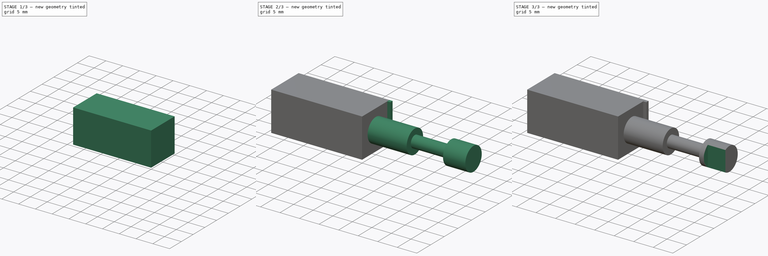
[diagram: build sequence overview — one tinted view per stage of 3, left to right]
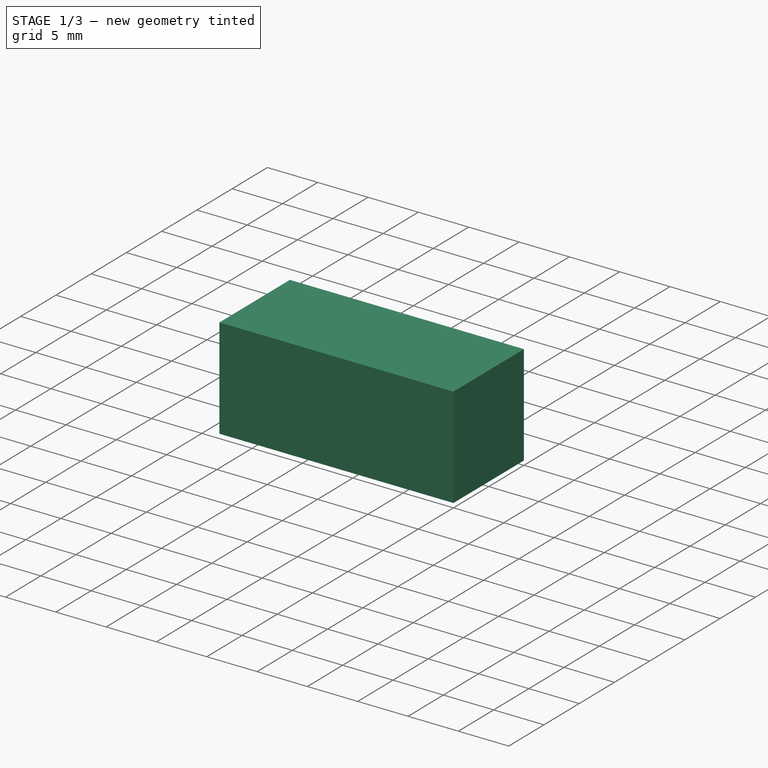
[diagram: stage 1 of 3 — iso view after this stage's code; geometry added in this stage tinted green]
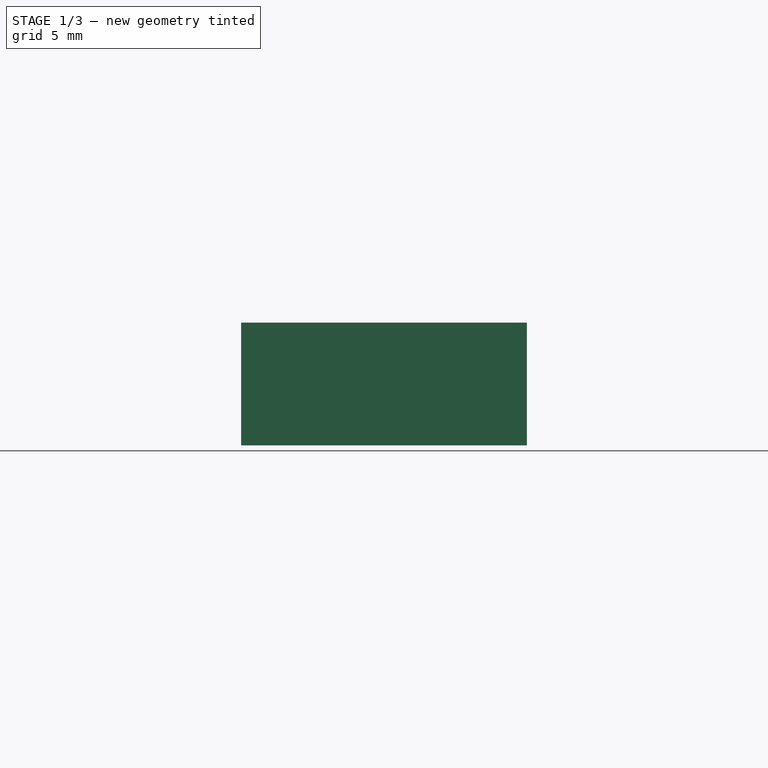
[diagram: stage 1 of 3 — front view after this stage's code; geometry added in this stage tinted green]
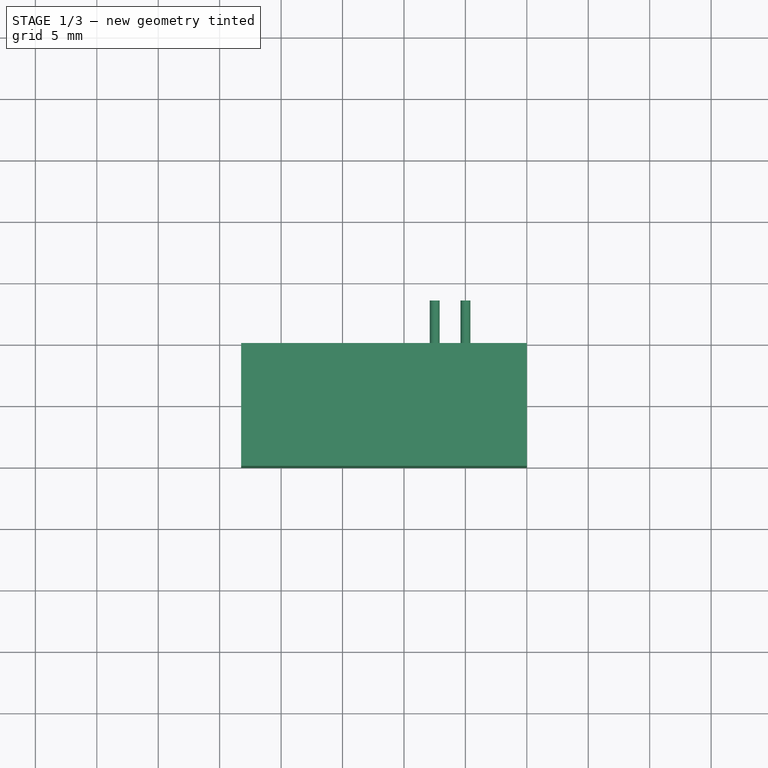
[diagram: stage 1 of 3 — top view after this stage's code; geometry added in this stage tinted green]
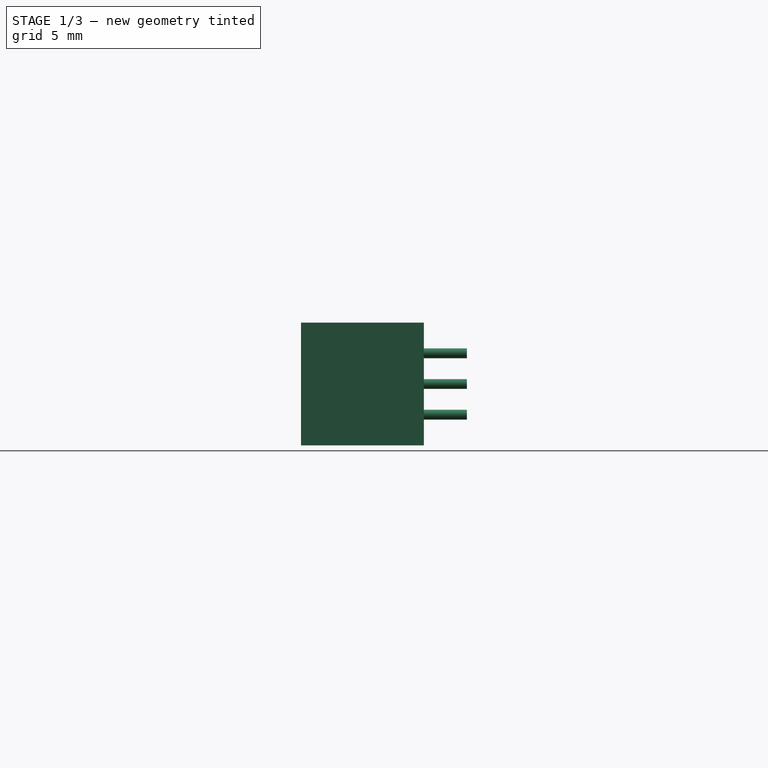
[diagram: stage 1 of 3 — right view after this stage's code; geometry added in this stage tinted green]
FCSTD DOCUMENT  (FreeCAD 0.15R4671 (Git))
Label: P09xP rotary potentiometer
License: CC-BY 3.0
LicenseURL: http://creativecommons.org/licenses/by/3.0/
objects: Sketcher::SketchObject×4, PartDesign::Pad×2, PartDesign::Revolution×1, PartDesign::Pocket×1, App::DocumentObjectGroup×1, Part::Box×1, Part::MultiFuse×1
note: 14 computed .brp shape members not serialized (recipe doc carries the construction recipe); baked Part::Feature solids carry a one-line shape summary decoded from their .brp

FEATURE [App::DocumentObjectGroup] Group  label="Push knob"
  Group = -> [Revolution]
FEATURE [Part::Box] Box
  Height = 10
  Length = 23.25
  Placement = pos=(-23.25,-5,-5) rot=(0,0,1;0rad)
  Width = 10
FEATURE [Sketcher::SketchObject] Sketch002
  ExternalGeometry = -> [Box]
  Placement = pos=(-23.25,5,-5) rot=(0,0.707107,0.707107;3.14159rad)
  Support = -> Box [Face4]
  sketch-geometry (14):
    g0: Circle CenterX=-18.25 CenterY=7.5 CenterZ=0 NormalX=0 NormalY=0 NormalZ=1 Radius=0.4
    g1: Circle CenterX=-18.25 CenterY=5 CenterZ=0 NormalX=0 NormalY=0 NormalZ=1 Radius=0.4
    g2: Circle CenterX=-18.25 CenterY=2.5 CenterZ=0 NormalX=0 NormalY=0 NormalZ=1 Radius=0.4
    g3: Circle CenterX=-15.75 CenterY=7.5 CenterZ=0 NormalX=0 NormalY=0 NormalZ=1 Radius=0.4
    g4: Circle CenterX=-15.75 CenterY=5 CenterZ=0 NormalX=0 NormalY=0 NormalZ=1 Radius=0.4
    g5: Circle CenterX=-15.75 CenterY=2.5 CenterZ=0 NormalX=0 NormalY=0 NormalZ=1 Radius=0.4
    g6: LineSegment [constr] StartX=-18.25 StartY=7.5 StartZ=0 EndX=-18.25 EndY=5 EndZ=0
    g7: LineSegment [constr] StartX=-18.25 StartY=5 StartZ=0 EndX=-18.25 EndY=2.5 EndZ=0
    g8: LineSegment [constr] StartX=-18.25 StartY=2.5 StartZ=0 EndX=-15.75 EndY=2.5 EndZ=0
    g9: LineSegment [constr] StartX=-18.25 StartY=7.5 StartZ=0 EndX=-15.75 EndY=7.5 EndZ=0
    g10: LineSegment [constr] StartX=-15.75 StartY=7.5 StartZ=0 EndX=-15.75 EndY=5 EndZ=0
    g11: LineSegment [constr] StartX=-15.75 StartY=5 StartZ=0 EndX=-15.75 EndY=2.5 EndZ=0
    g12: LineSegment [constr] StartX=-15.75 StartY=2.5 StartZ=0 EndX=-15.75 EndY=0 EndZ=0
    g13: LineSegment [constr] StartX=-15.75 StartY=7.5 StartZ=0 EndX=-15.75 EndY=10 EndZ=0
  constraints (37):
    c: DistanceX(g0,g3) = 2.5
    c: Coincident(g6,g0)
    c: Coincident(g7,g1)
    c: Vertical(g7)
    c: Vertical(g6)
    c: Coincident(g1,g6)
    c: Coincident(g2,g7)
    c: Coincident(g8,g2)
    c: Coincident(g8,g5)
    c: Horizontal(g8)
    c: Horizontal(g9)
    c: Coincident(g9,g10)
    c: Coincident(g9,g0)
    c: Coincident(g9,g3)
    c: Coincident(g10,g4)
    c: Vertical(g10)
    c: Coincident(g11,g4)
    c: Coincident(g11,g5)
    c: Vertical(g11)
    c: DistanceY(g0,g1) = -2.5
    c: Equal(g6,g10)
    c: Equal(g10,g11)
    c: Equal(g11,g7)
    c: Equal(g0,g3)
    c: Equal(g3,g4)
    c: Equal(g4,g1)
    c: Equal(g1,g2)
    c: Equal(g2,g5)
    c: Radius(g0) = 0.4
    c: DistanceX(g0,g-4) = -5
    c: Coincident(g12,g5)
    c: Vertical(g12)
    c: PointOnObject(g12,g-1)
    c: Coincident(g13,g3)
    c: PointOnObject(g13,g-4)
    c: Vertical(g13)
    c: Equal(g12,g13)
FEATURE [PartDesign::Pad] Pad
  Length = 3.5
  Length2 = 100
  Placement = pos=(-23.25,-5,-5) rot=(0,0,1;0rad)
  Sketch = -> Sketch002
  Type = 0
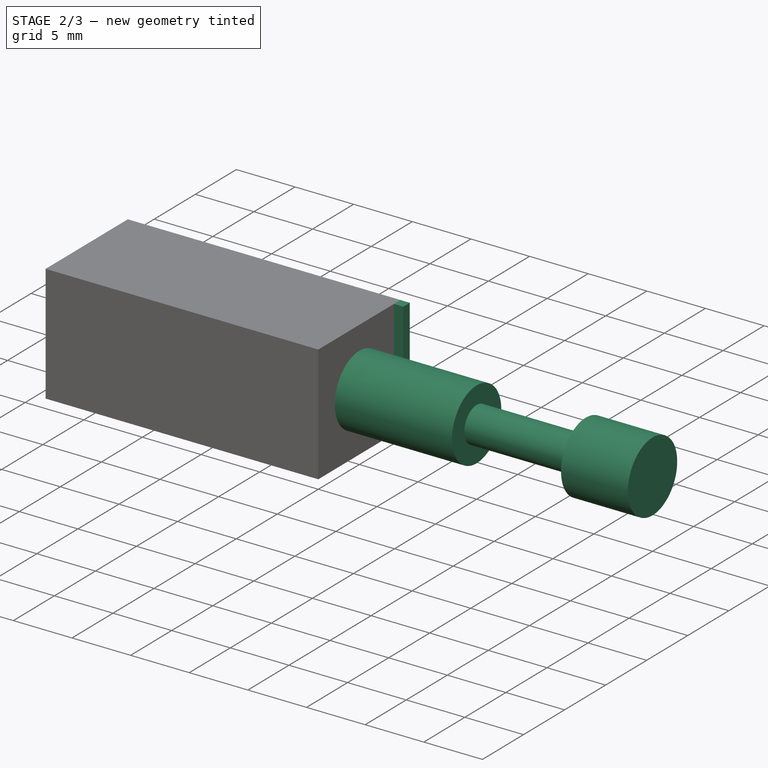
[diagram: stage 2 of 3 — iso view after this stage's code; geometry added in this stage tinted green]
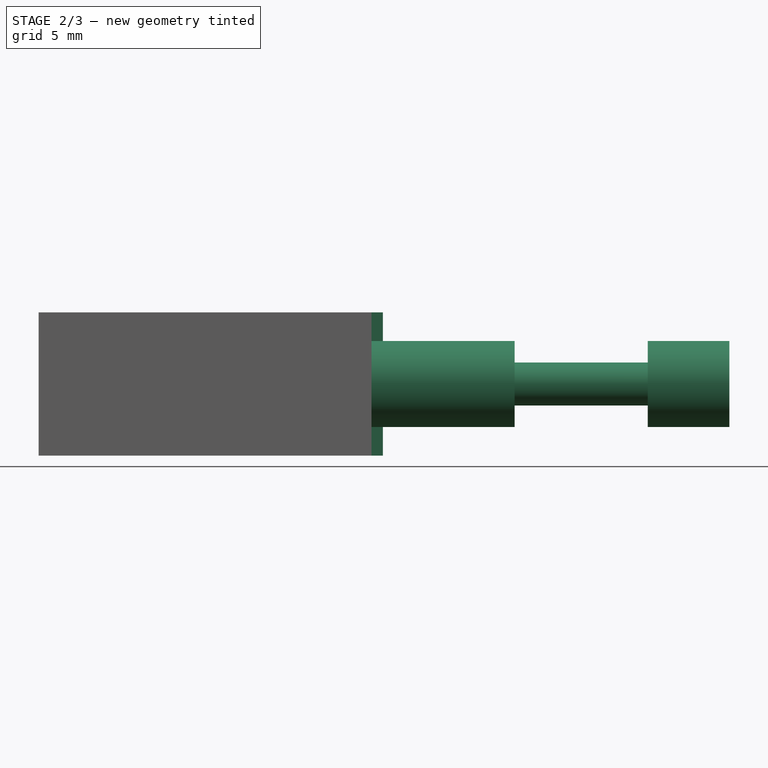
[diagram: stage 2 of 3 — front view after this stage's code; geometry added in this stage tinted green]
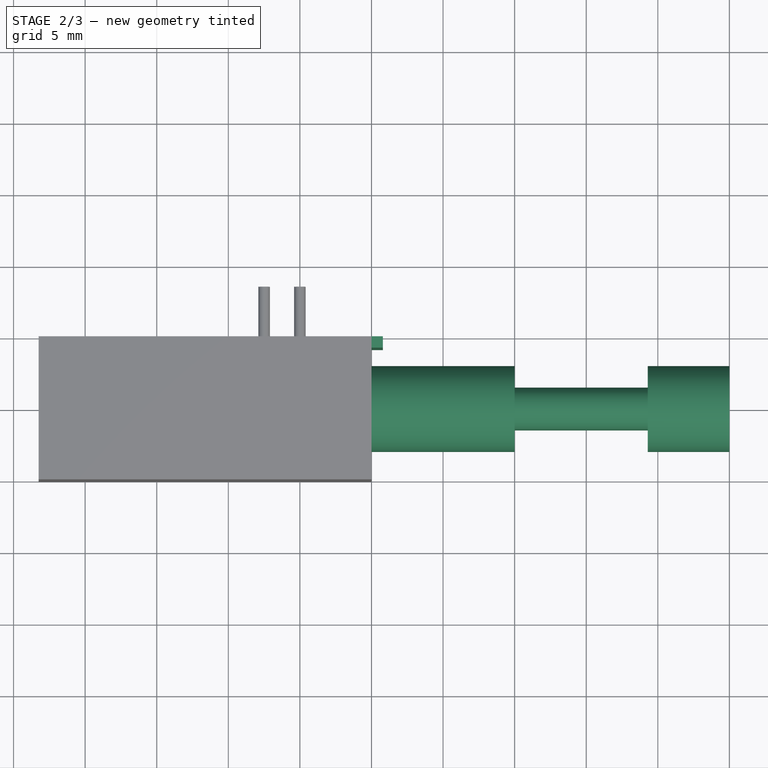
[diagram: stage 2 of 3 — top view after this stage's code; geometry added in this stage tinted green]
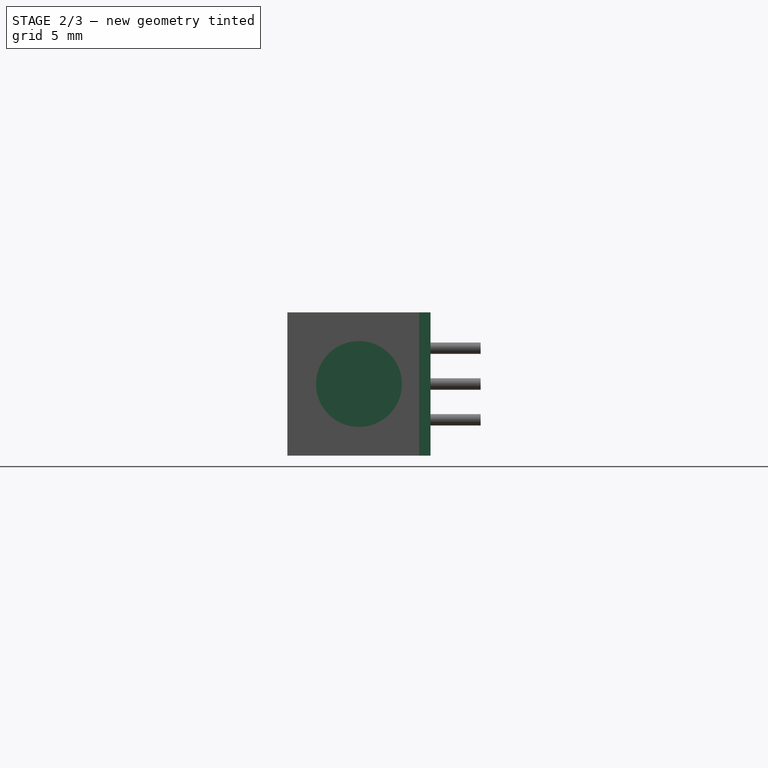
[diagram: stage 2 of 3 — right view after this stage's code; geometry added in this stage tinted green]
FEATURE [Sketcher::SketchObject] Sketch
  Placement = pos=(0,0,0) rot=(1,0,0;1.5708rad)
  sketch-geometry (8):
    g0: LineSegment StartX=10 StartY=3 StartZ=0 EndX=0 EndY=3 EndZ=0
    g1: LineSegment StartX=0 StartY=3 StartZ=0 EndX=0 EndY=0 EndZ=0
    g2: LineSegment StartX=25 StartY=0 StartZ=0 EndX=25 EndY=3 EndZ=0
    g3: LineSegment StartX=25 StartY=3 StartZ=0 EndX=19.3 EndY=3 EndZ=0
    g4: LineSegment StartX=10 StartY=3 StartZ=0 EndX=10 EndY=1.5 EndZ=0
    g5: LineSegment StartX=10 StartY=1.5 StartZ=0 EndX=19.3 EndY=1.5 EndZ=0
    g6: LineSegment StartX=19.3 StartY=1.5 StartZ=0 EndX=19.3 EndY=3 EndZ=0
    g7: LineSegment StartX=0 StartY=0 StartZ=0 EndX=25 EndY=0 EndZ=0
  constraints (23):
    c: Horizontal(g0)
    c: Coincident(g0,g1)
    c: Vertical(g1)
    c: Vertical(g2)
    c: Coincident(g2,g3)
    c: Horizontal(g3)
    c: Distance(g0,g0) = 10
    c: Distance(g2,g3) = 5.7
    c: DistanceY(g2,g2) = 3
    c: DistanceX(g1,g2) = 25
    c: Coincident(g0,g4)
    c: Coincident(g4,g5)
    c: Horizontal(g5)
    c: Coincident(g5,g6)
    c: Coincident(g6,g3)
    c: Vertical(g6)
    c: Coincident(g-1,g1)
    c: Vertical(g4)
    c: PointOnObject(g2,g-1)
    c: DistanceY(g5,g2) = -1.5
    c: Equal(g1,g2)
    c: Coincident(g7,g-1)
    c: Coincident(g7,g2)
FEATURE [PartDesign::Revolution] Revolution
  Angle = 360
  Axis = (1,0,0)
  Base = (0,0,0)
  Placement = pos=(0,0,0) rot=(1,0,0;1.5708rad)
  ReferenceAxis = -> Sketch [H_Axis]
  Sketch = -> Sketch
FEATURE [Sketcher::SketchObject] Sketch003
  ExternalGeometry = -> [Pad]
  Placement = pos=(0,-5,-5) rot=(0.57735,0.57735,0.57735;2.0944rad)
  Support = -> Pad [Face6]
  sketch-geometry (4):
    g0: LineSegment StartX=10 StartY=10 StartZ=0 EndX=9.2 EndY=10 EndZ=0
    g1: LineSegment StartX=9.2 StartY=10 StartZ=0 EndX=9.2 EndY=0 EndZ=0
    g2: LineSegment StartX=9.2 StartY=0 StartZ=0 EndX=10 EndY=0 EndZ=0
    g3: LineSegment StartX=10 StartY=0 StartZ=0 EndX=10 EndY=10 EndZ=0
  constraints (11):
    c: Coincident(g0,g1)
    c: Coincident(g1,g2)
    c: Coincident(g2,g3)
    c: Coincident(g3,g0)
    c: Horizontal(g0)
    c: Horizontal(g2)
    c: Vertical(g1)
    c: Vertical(g3)
    c: Coincident(g0,g-4)
    c: PointOnObject(g1,g-1)
    c: DistanceX(g0,g0) = 0.8
FEATURE [PartDesign::Pad] Pad001
  Length = 0.8
  Length2 = 100
  Placement = pos=(-23.25,-5,-5) rot=(0,0,1;0rad)
  Sketch = -> Sketch003
  Type = 0
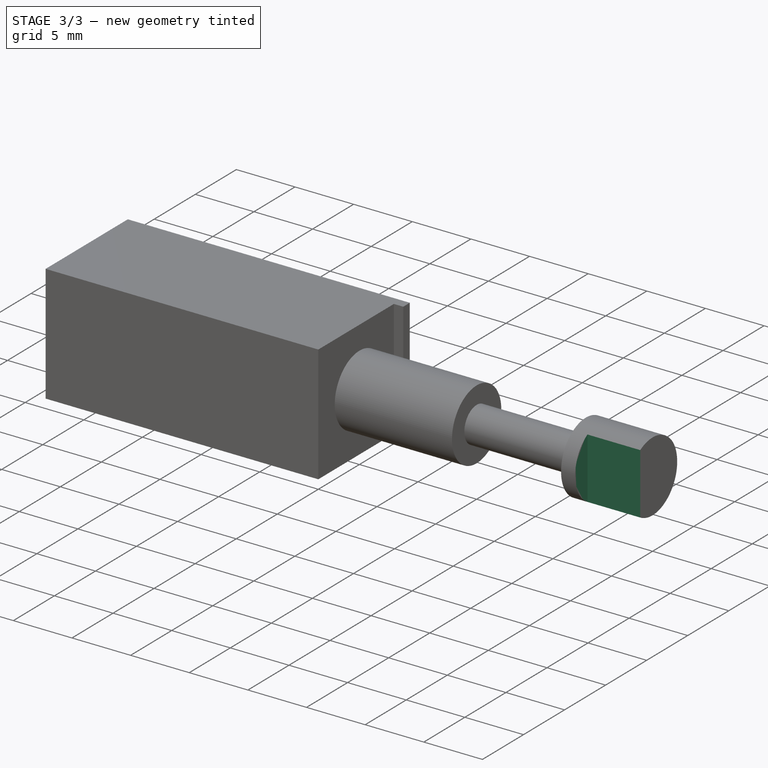
[diagram: stage 3 of 3 — iso view after this stage's code; geometry added in this stage tinted green]
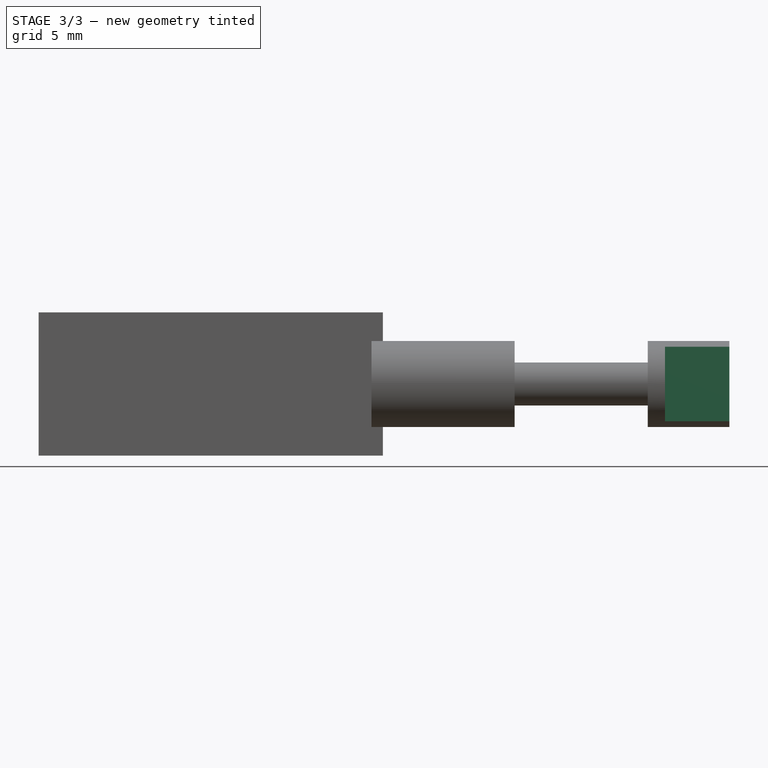
[diagram: stage 3 of 3 — front view after this stage's code; geometry added in this stage tinted green]
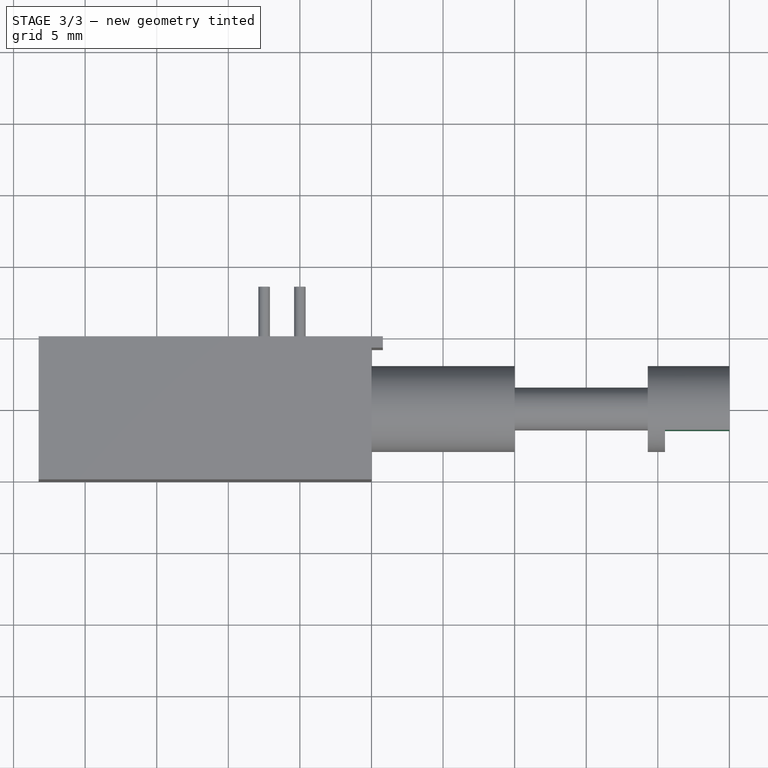
[diagram: stage 3 of 3 — top view after this stage's code; geometry added in this stage tinted green]
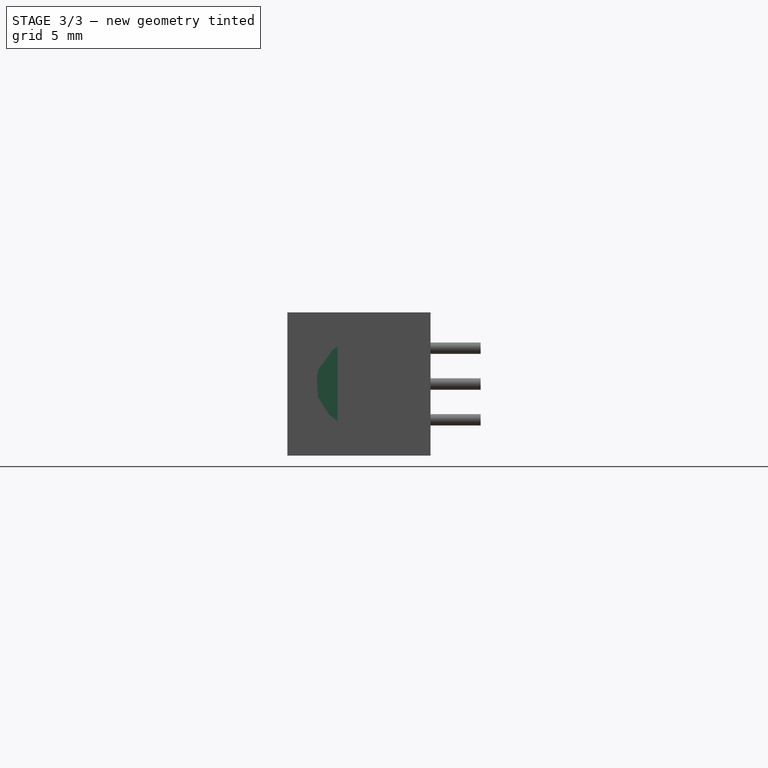
[diagram: stage 3 of 3 — right view after this stage's code; geometry added in this stage tinted green]
FEATURE [Sketcher::SketchObject] Sketch001
  Placement = pos=(25,0,0) rot=(0.707107,0,0.707107;3.14159rad)
  Support = -> Revolution [Face4]
  sketch-geometry (2):
    g0: ArcOfCircle CenterX=0 CenterY=1.49999 CenterZ=0 NormalX=0 NormalY=0 NormalZ=1 Radius=3 StartAngle=4.90282e-06 EndAngle=3.14159
    g1: LineSegment StartX=-3 StartY=1.5 StartZ=0 EndX=3 EndY=1.5 EndZ=0
  constraints (6):
    c: Radius(g0) = 3
    c: DistanceY(g-1,g0) = 1.5
    c: Coincident(g1,g0)
    c: Coincident(g1,g0)
    c: Symmetric(g0,g0,g-2)
    c: DistanceX(g-1,g0) = -3
FEATURE [PartDesign::Pocket] Pocket
  Length = 4.5
  Placement = pos=(0,0,0) rot=(1,0,0;1.5708rad)
  Sketch = -> Sketch001
  Type = 0
FEATURE [Part::MultiFuse] Fusion
  Shapes = -> [Pad001,Pocket]
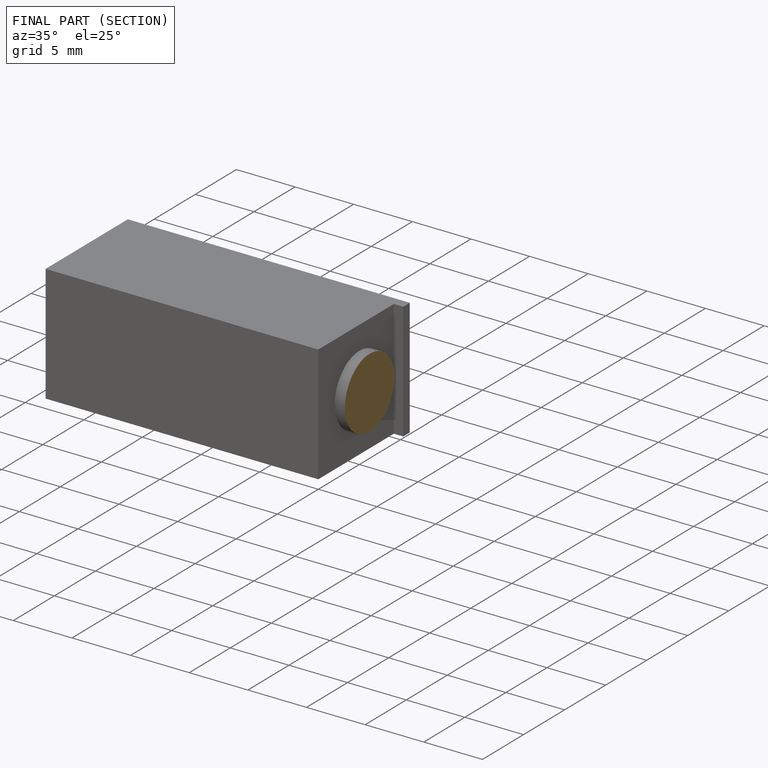
[diagram: finished part — half-section view (interior)]
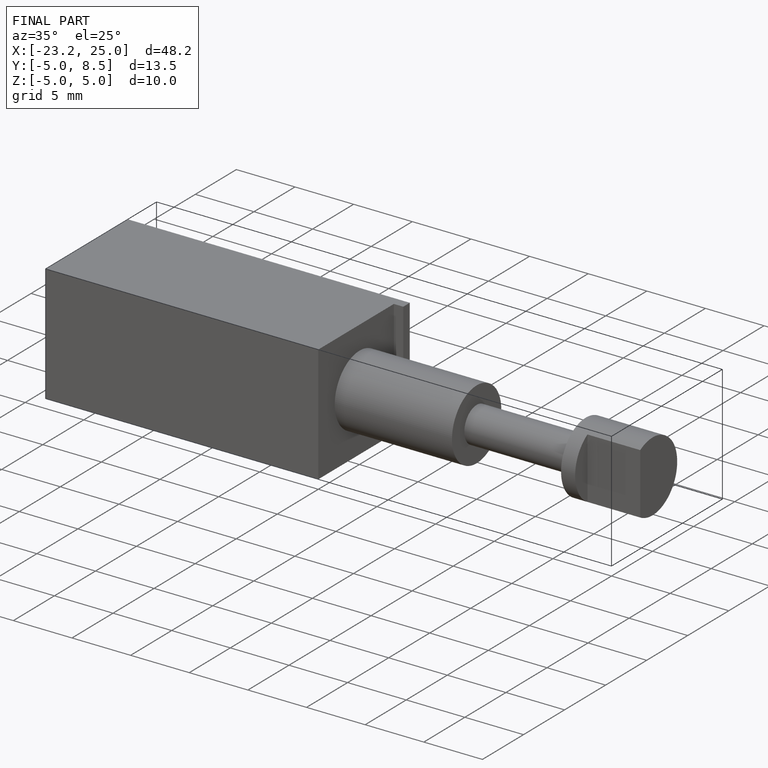
[diagram: finished part — iso view with bounding-box wireframe]
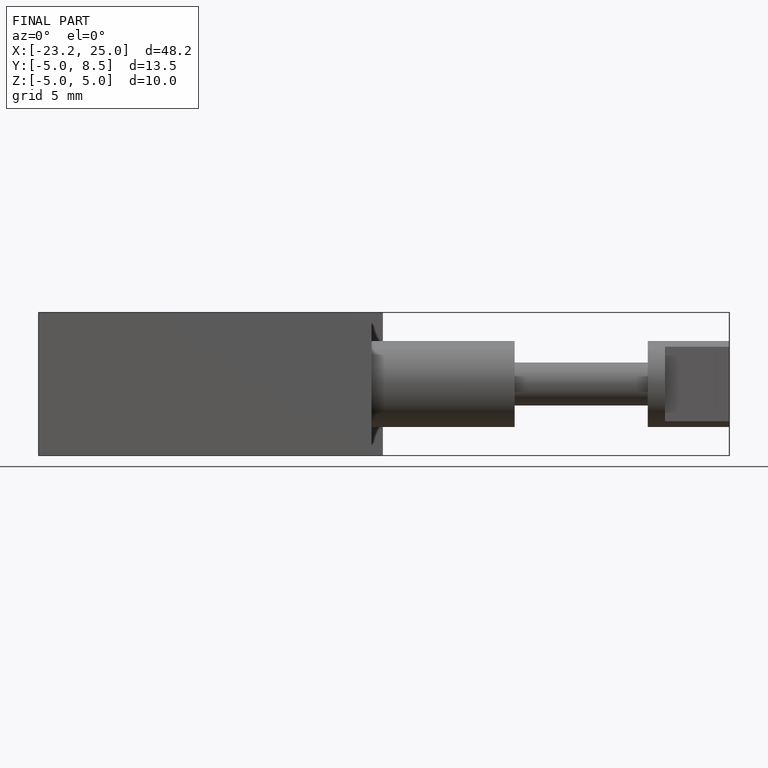
[diagram: finished part — front view with bounding-box wireframe]
